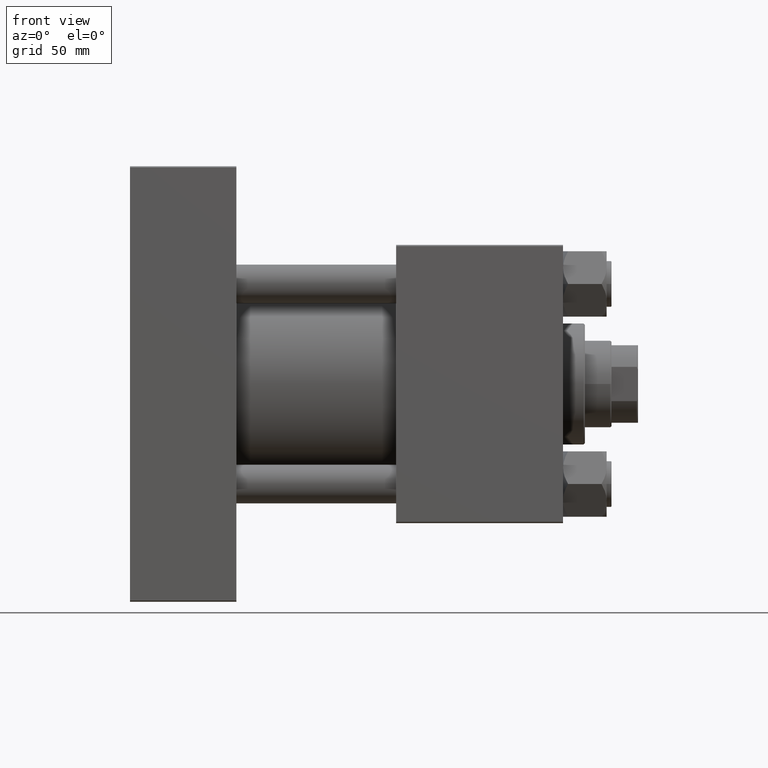
[diagram: clean part render]
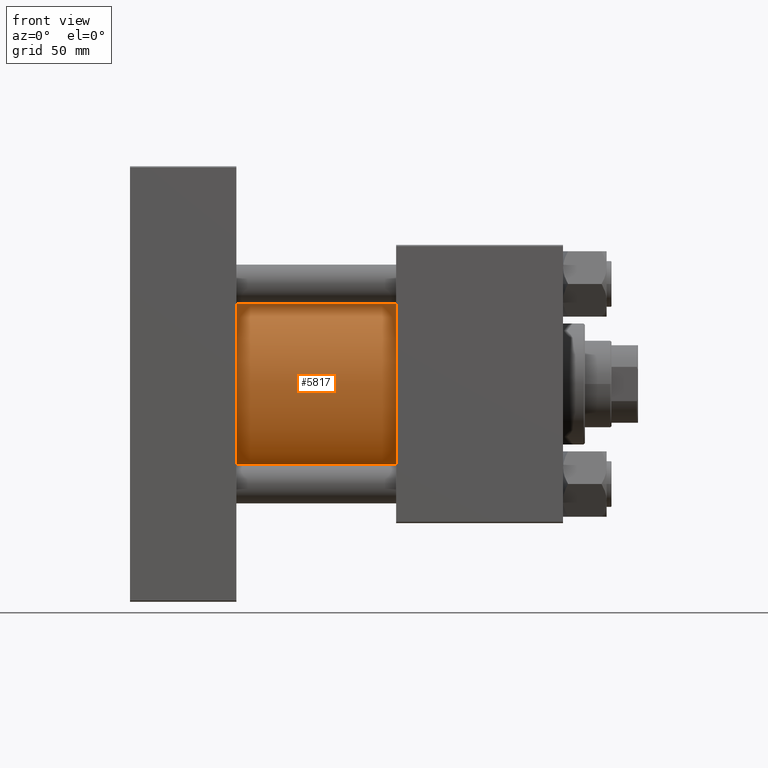
[diagram: same view with one face highlighted and labeled with its STEP entity id]
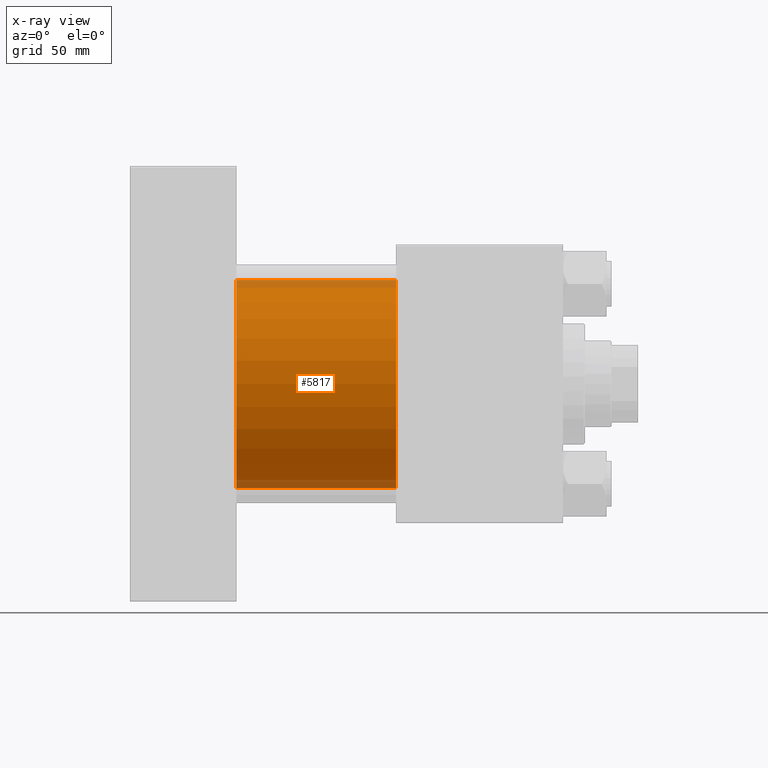
[diagram: x-ray of the same camera — body ghosted, the highlighted face saturated]
A machine part, front view. The second image highlights one B-rep face of the part: STEP entity #5817.
The next image is the same camera in x-ray: the body ghosted, the highlighted face saturated — about 7% of this face is hidden behind the body in this view.
In plain terms, the highlighted cylindrical surface (partial cylindrical patch) has radius 43 mm, axis along (-1, -0, -0).
Its self-contained STEP definition (entity closure, byte-faithful):
#1197 = CARTESIAN_POINT ( 'NONE',  ( 44.00000000000000000, -2.602085213965210642E-15, 0.000000000000000000 ) ) ;
#1949 = CARTESIAN_POINT ( 'NONE',  ( 44.00000000000000000, -2.602085213965210642E-15, 43.00000000000000000 ) ) ;
#3308 = VERTEX_POINT ( 'NONE', #10285 ) ;
#5817 = ADVANCED_FACE ( 'NONE', ( #44179 ), #36205, .T. ) ;
#6623 = CIRCLE ( 'NONE', #26159, 43.00000000000000000 ) ;
#7794 = CARTESIAN_POINT ( 'NONE',  ( 44.00000000000000000, 2.663896022368408223E-15, -43.00000000000000000 ) ) ;
#7795 = CARTESIAN_POINT ( 'NONE',  ( 110.0000000000000000, -2.602085213965210642E-15, 0.000000000000000000 ) ) ;
#9111 = CARTESIAN_POINT ( 'NONE',  ( 110.0000000000000000, 2.663896022368408223E-15, -43.00000000000000000 ) ) ;
#9444 = CARTESIAN_POINT ( 'NONE',  ( 110.0000000000000000, -2.602085213965210642E-15, 0.000000000000000000 ) ) ;
#9781 = LINE ( 'NONE', #50156, #12734 ) ;
#10285 = CARTESIAN_POINT ( 'NONE',  ( 110.0000000000000000, -2.602085213965210642E-15, 43.00000000000000000 ) ) ;
#11124 = LINE ( 'NONE', #38766, #16100 ) ;
#11757 = ORIENTED_EDGE ( 'NONE', *, *, #44155, .F. ) ;
#12734 = VECTOR ( 'NONE', #18023, 1000.000000000000000 ) ;
#14326 = DIRECTION ( 'NONE',  ( -1.000000000000000000, -0.000000000000000000, -0.000000000000000000 ) ) ;
#15918 = ORIENTED_EDGE ( 'NONE', *, *, #18521, .T. ) ;
#16100 = VECTOR ( 'NONE', #14326, 1000.000000000000000 ) ;
#17778 = ORIENTED_EDGE ( 'NONE', *, *, #20756, .F. ) ;
#18023 = DIRECTION ( 'NONE',  ( -1.000000000000000000, -0.000000000000000000, -0.000000000000000000 ) ) ;
#18357 = ORIENTED_EDGE ( 'NONE', *, *, #20526, .T. ) ;
#18521 = EDGE_CURVE ( 'NONE', #44724, #36821, #41454, .T. ) ;
#20526 = EDGE_CURVE ( 'NONE', #3308, #44724, #9781, .T. ) ;
#20756 = EDGE_CURVE ( 'NONE', #34325, #36821, #11124, .T. ) ;
#23999 = DIRECTION ( 'NONE',  ( 0.000000000000000000, 0.000000000000000000, 1.000000000000000000 ) ) ;
#25344 = AXIS2_PLACEMENT_3D ( 'NONE', #1197, #37587, #29614 ) ;
#25651 = DIRECTION ( 'NONE',  ( 1.000000000000000000, 0.000000000000000000, 0.000000000000000000 ) ) ;
#26159 = AXIS2_PLACEMENT_3D ( 'NONE', #9444, #25651, #46889 ) ;
#29614 = DIRECTION ( 'NONE',  ( 0.000000000000000000, 0.000000000000000000, 1.000000000000000000 ) ) ;
#34325 = VERTEX_POINT ( 'NONE', #9111 ) ;
#36205 = CYLINDRICAL_SURFACE ( 'NONE', #47291, 43.00000000000000000 ) ;
#36821 = VERTEX_POINT ( 'NONE', #7794 ) ;
#37587 = DIRECTION ( 'NONE',  ( 1.000000000000000000, -0.000000000000000000, 0.000000000000000000 ) ) ;
#38766 = CARTESIAN_POINT ( 'NONE',  ( 110.0000000000000000, 2.663896022368408223E-15, -43.00000000000000000 ) ) ;
#41233 = DIRECTION ( 'NONE',  ( -1.000000000000000000, -0.000000000000000000, -0.000000000000000000 ) ) ;
#41454 = CIRCLE ( 'NONE', #25344, 43.00000000000000000 ) ;
#42824 = EDGE_LOOP ( 'NONE', ( #17778, #11757, #18357, #15918 ) ) ;
#44155 = EDGE_CURVE ( 'NONE', #3308, #34325, #6623, .T. ) ;
#44179 = FACE_OUTER_BOUND ( 'NONE', #42824, .T. ) ;
#44724 = VERTEX_POINT ( 'NONE', #1949 ) ;
#46889 = DIRECTION ( 'NONE',  ( 0.000000000000000000, 0.000000000000000000, -1.000000000000000000 ) ) ;
#47291 = AXIS2_PLACEMENT_3D ( 'NONE', #7795, #41233, #23999 ) ;
#50156 = CARTESIAN_POINT ( 'NONE',  ( 110.0000000000000000, -2.602085213965210642E-15, 43.00000000000000000 ) ) ;